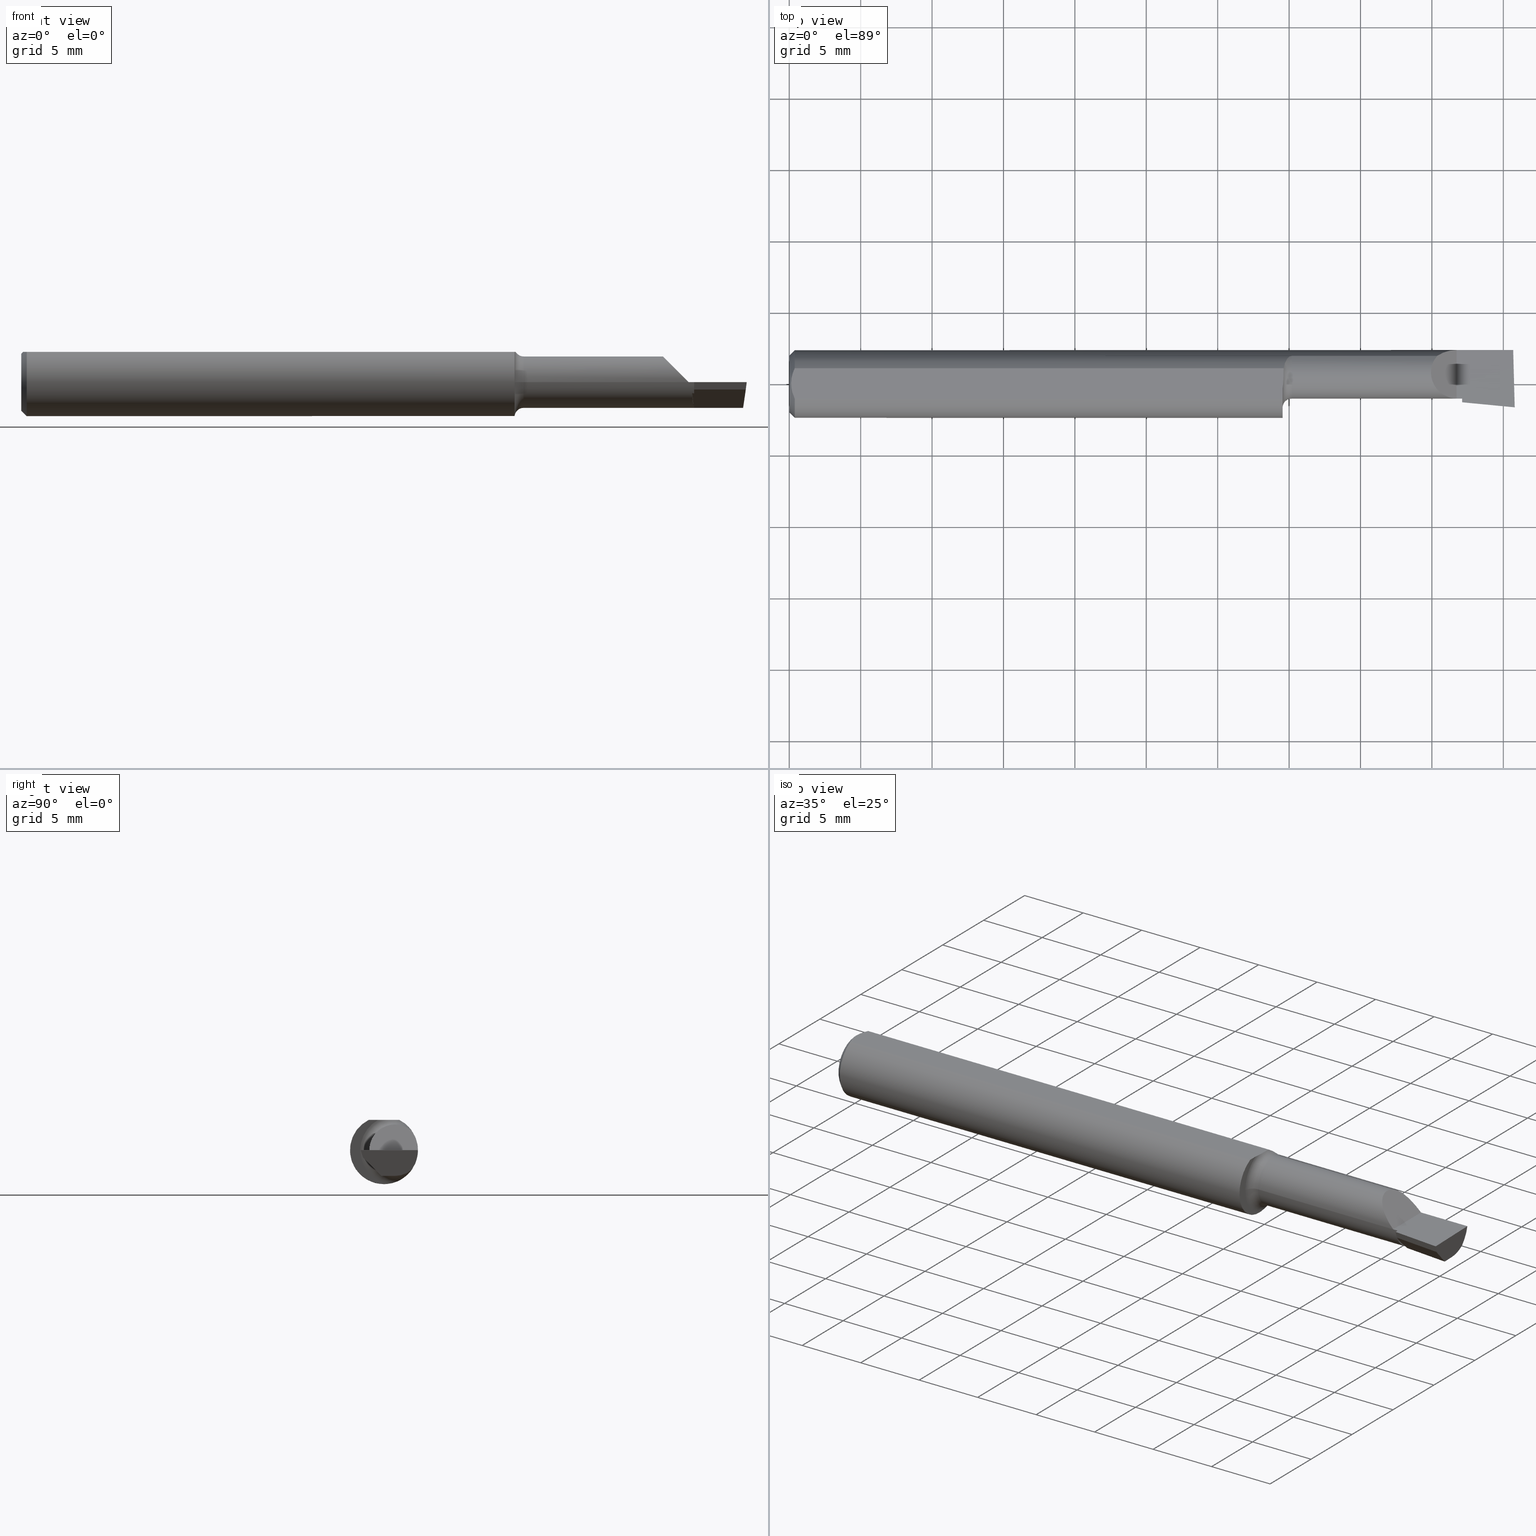
[diagram: canonical four-view strip — front | top / right | iso, engineering-drawing reading convention]
A machine part, canonical four-view strip (front | top / right | iso — engineering-drawing reading convention). The complete STEP part file that produces these views, byte-faithful:
ISO-10303-21;
HEADER;
FILE_DESCRIPTION (( 'STEP AP203' ),
    '1' );
FILE_NAME ('211932-LHB160600.STEP',
    '2024-08-23T16:45:56',
    ( '' ),
    ( '' ),
    'SwSTEP 2.0',
    'SolidWorks 2024',
    '' );
FILE_SCHEMA (( 'CONFIG_CONTROL_DESIGN' ));
ENDSEC;

DATA;
#1 = APPROVAL_PERSON_ORGANIZATION ( #90, #256, #36 ) ;
#2 = EDGE_CURVE ( 'NONE', #125, #699, #570, .T. ) ;
#3 = DIRECTION ( 'NONE',  ( 0.000000000000000000, -1.000000000000000000, 0.000000000000000000 ) ) ;
#4 = AXIS2_PLACEMENT_3D ( 'NONE', #457, #72, #345 ) ;
#5 = CARTESIAN_POINT ( 'NONE',  ( 1.854999999999999982, 0.03049999999999998199, -0.07089999999999999081 ) ) ;
#6 = CLOSED_SHELL ( 'NONE', ( #509, #52, #464, #275, #108, #30, #301, #81, #316, #502, #290, #415, #376, #367, #671, #556, #660, #523, #279 ) ) ;
#7 = VERTEX_POINT ( 'NONE', #564 ) ;
#8 = DIRECTION ( 'NONE',  ( 1.000000000000000000, 0.000000000000000000, 0.000000000000000000 ) ) ;
#9 = LINE ( 'NONE', #176, #677 ) ;
#10 = CARTESIAN_POINT ( 'NONE',  ( 0.000000000000000000, 0.000000000000000000, 0.000000000000000000 ) ) ;
#11 = ORIENTED_EDGE ( 'NONE', *, *, #512, .F. ) ;
#12 = DIRECTION ( 'NONE',  ( 0.9953961983671787417, -0.09584575252022420333, -0.000000000000000000 ) ) ;
#13 = CONICAL_SURFACE ( 'NONE', #348, 0.09360000000000001652, 0.7853981633974601584 ) ;
#14 = DIRECTION ( 'NONE',  ( -1.000000000000000000, -0.000000000000000000, -0.000000000000000000 ) ) ;
#15 = ORIENTED_EDGE ( 'NONE', *, *, #114, .F. ) ;
#16 = CARTESIAN_POINT ( 'NONE',  ( 1.377244873747904386, 0.07364233512257384318, -0.05779374943917914287 ) ) ;
#17 = CARTESIAN_POINT ( 'NONE',  ( 1.384999999999999565, 0.07646557377049154058, 0.05398125626501764501 ) ) ;
#18 = FACE_OUTER_BOUND ( 'NONE', #581, .T. ) ;
#19 = CARTESIAN_POINT ( 'NONE',  ( 1.840000000000000080, -0.2500000000000000555, 1.959434878635766031E-17 ) ) ;
#20 = EDGE_CURVE ( 'NONE', #433, #214, #289, .T. ) ;
#21 = CARTESIAN_POINT ( 'NONE',  ( 1.961456798068603513, -0.06540928926280098477, -0.3257614991881986888 ) ) ;
#22 = DIRECTION ( 'NONE',  ( 1.000000000000000000, 0.000000000000000000, 0.000000000000000000 ) ) ;
#23 = EDGE_CURVE ( 'NONE', #365, #7, #168, .T. ) ;
#24 = CARTESIAN_POINT ( 'NONE',  ( 1.362801882726447644, 0.04209513036031878319, 0.08360000000000000764 ) ) ;
#25 = ORIENTED_EDGE ( 'NONE', *, *, #302, .F. ) ;
#26 = TOROIDAL_SURFACE ( 'NONE', #637, 0.09590000000000006852, 0.02499999999999993547 ) ;
#27 = ORIENTED_EDGE ( 'NONE', *, *, #529, .T. ) ;
#28 = PRODUCT_DEFINITION ( 'UNKNOWN', '', #190, #194 ) ;
#29 = ORIENTED_EDGE ( 'NONE', *, *, #206, .T. ) ;
#30 = ADVANCED_FACE ( 'NONE', ( #18 ), #574, .T. ) ;
#31 = CC_DESIGN_APPROVAL ( #610, ( #42 ) ) ;
#32 = VECTOR ( 'NONE', #522, 39.37007874015748143 ) ;
#33 = VERTEX_POINT ( 'NONE', #460 ) ;
#34 = DIRECTION ( 'NONE',  ( 0.000000000000000000, 0.000000000000000000, 1.000000000000000000 ) ) ;
#35 = CARTESIAN_POINT ( 'NONE',  ( 0.000000000000000000, 0.000000000000000000, 0.000000000000000000 ) ) ;
#36 = APPROVAL_ROLE ( '' ) ;
#37 = B_SPLINE_CURVE_WITH_KNOTS ( 'NONE', 3,
 ( #48, #655, #594, #262, #437, #218, #644, #553 ),
 .UNSPECIFIED., .F., .F.,
 ( 4, 2, 2, 4 ),
 ( 0.009645755407239700943, 0.01039251846724311042, 0.01076589999724481342, 0.01113928152724651816 ),
 .UNSPECIFIED. ) ;
#38 = DIRECTION ( 'NONE',  ( -4.268512490100411279E-18, -1.000000000000000000, 0.000000000000000000 ) ) ;
#39 = EDGE_CURVE ( 'NONE', #656, #350, #267, .T. ) ;
#40 = CARTESIAN_POINT ( 'NONE',  ( 1.848806480742780645, -0.04350657842466744418, -0.02000000000000007327 ) ) ;
#41 = PERSON_AND_ORGANIZATION_ROLE ( 'creator' ) ;
#42 = SECURITY_CLASSIFICATION ( '', '', #322 ) ;
#43 = ORIENTED_EDGE ( 'NONE', *, *, #160, .T. ) ;
#44 = CARTESIAN_POINT ( 'NONE',  ( 0.009539353699420828961, -0.02875682547511369466, 0.08360000000000000764 ) ) ;
#45 = CIRCLE ( 'NONE', #670, 0.07090000000000006020 ) ;
#46 = DIRECTION ( 'NONE',  ( 0.000000000000000000, -1.000000000000000000, 0.000000000000000000 ) ) ;
#47 = CALENDAR_DATE ( 2024, 23, 8 ) ;
#48 = CARTESIAN_POINT ( 'NONE',  ( 1.359999999999999654, -0.01648776436477914636, 0.08360000000000000764 ) ) ;
#49 = DIRECTION ( 'NONE',  ( -4.268512490100411279E-18, -1.000000000000000000, 0.000000000000000000 ) ) ;
#50 = PERSON_AND_ORGANIZATION ( #89, #245 ) ;
#51 = PLANE ( 'NONE',  #555 ) ;
#52 = ADVANCED_FACE ( 'NONE', ( #458 ), #26, .F. ) ;
#53 = DIRECTION ( 'NONE',  ( 0.000000000000000000, -1.000000000000000000, 0.000000000000000000 ) ) ;
#54 = PERSON_AND_ORGANIZATION_ROLE ( 'creator' ) ;
#55 = CARTESIAN_POINT ( 'NONE',  ( 2.000000000000000000, 0.1436000000000000332, 0.08359999999999999376 ) ) ;
#56 = ORIENTED_EDGE ( 'NONE', *, *, #534, .F. ) ;
#57 = DIRECTION ( 'NONE',  ( 0.000000000000000000, -1.189000693621284344E-16, -1.000000000000000000 ) ) ;
#58 = ORIENTED_EDGE ( 'NONE', *, *, #71, .F. ) ;
#59 = CARTESIAN_POINT ( 'NONE',  ( 1.853287423599283779, -0.03344297587611165523, -0.03063069110996662070 ) ) ;
#60 = FACE_OUTER_BOUND ( 'NONE', #189, .T. ) ;
#61 = ORIENTED_EDGE ( 'NONE', *, *, #114, .T. ) ;
#62 = CARTESIAN_POINT ( 'NONE',  ( 1.368064680686317480, 0.06127374973417710341, -0.07108395546218300443 ) ) ;
#63 = DIRECTION ( 'NONE',  ( 0.1175789623991727179, 0.000000000000000000, 0.9930635365378863710 ) ) ;
#64 = EDGE_LOOP ( 'NONE', ( #576, #274, #11, #340 ) ) ;
#65 = CARTESIAN_POINT ( 'NONE',  ( 1.378436874164508108, 0.07452398798010552439, -0.05664421274495243241 ) ) ;
#66 = DIRECTION ( 'NONE',  ( -0.9927123040216839778, -0.02659410830638199788, 0.1175373763844853731 ) ) ;
#67 = VERTEX_POINT ( 'NONE', #192 ) ;
#68 = EDGE_CURVE ( 'NONE', #70, #238, #577, .T. ) ;
#69 = LINE ( 'NONE', #288, #480 ) ;
#70 = VERTEX_POINT ( 'NONE', #417 ) ;
#71 = EDGE_CURVE ( 'NONE', #284, #184, #272, .T. ) ;
#72 = DIRECTION ( 'NONE',  ( -1.000000000000000000, -0.000000000000000000, -0.000000000000000000 ) ) ;
#73 = ORIENTED_EDGE ( 'NONE', *, *, #74, .F. ) ;
#74 = EDGE_CURVE ( 'NONE', #674, #106, #45, .T. ) ;
#75 = VECTOR ( 'NONE', #349, 39.37007874015748143 ) ;
#76 = CARTESIAN_POINT ( 'NONE',  ( 0.01499999999999999598, 0.000000000000000000, 0.000000000000000000 ) ) ;
#77 = CIRCLE ( 'NONE', #468, 0.09590000000000006852 ) ;
#78 = VERTEX_POINT ( 'NONE', #558 ) ;
#79 = VECTOR ( 'NONE', #210, 39.37007874015748143 ) ;
#80 = CIRCLE ( 'NONE', #575, 0.07090000000000006020 ) ;
#81 = ADVANCED_FACE ( 'NONE', ( #60 ), #503, .F. ) ;
#82 = ORIENTED_EDGE ( 'NONE', *, *, #68, .F. ) ;
#83 = CARTESIAN_POINT ( 'NONE',  ( 1.384999999999999565, 0.03049999999999999586, 0.000000000000000000 ) ) ;
#84 = ORIENTED_EDGE ( 'NONE', *, *, #614, .T. ) ;
#85 = CC_DESIGN_PERSON_AND_ORGANIZATION_ASSIGNMENT ( #384, #378, ( #589 ) ) ;
#86 = LINE ( 'NONE', #320, #110 ) ;
#87 = DIRECTION ( 'NONE',  ( -1.000000000000000000, 4.268512490100411279E-18, -0.000000000000000000 ) ) ;
#88 = CARTESIAN_POINT ( 'NONE',  ( 1.854999999999999982, -0.04410294649893821417, -0.02000000000000007674 ) ) ;
#89 = PERSON ( 'UNSPECIFIED', 'UNSPECIFIED', 'UNSPECIFIED', ('UNSPECIFIED'), ('UNSPECIFIED'), ('UNSPECIFIED') ) ;
#90 = PERSON_AND_ORGANIZATION ( #89, #245 ) ;
#91 = EDGE_LOOP ( 'NONE', ( #84, #241, #462, #668 ) ) ;
#92 = CARTESIAN_POINT ( 'NONE',  ( 1.359999999999999654, 0.1436000000000000332, 0.08359999999999999376 ) ) ;
#93 = CARTESIAN_POINT ( 'NONE',  ( 1.852910919016435898, -0.0008803571618433328038, -0.06357737950242325908 ) ) ;
#94 = ORIENTED_EDGE ( 'NONE', *, *, #640, .F. ) ;
#95 = DIRECTION ( 'NONE',  ( -1.000000000000000000, 4.268512490100411279E-18, -0.000000000000000000 ) ) ;
#96 = CARTESIAN_POINT ( 'NONE',  ( 0.01499999999999999944, -0.04209513035969835587, 0.08360000000000000764 ) ) ;
#97 =( NAMED_UNIT ( * ) SI_UNIT ( $, .STERADIAN. ) SOLID_ANGLE_UNIT ( ) );
#98 = ORIENTED_EDGE ( 'NONE', *, *, #526, .T. ) ;
#99 = PLANE ( 'NONE',  #669 ) ;
#100 = FACE_OUTER_BOUND ( 'NONE', #422, .T. ) ;
#101 = APPROVAL_STATUS ( 'not_yet_approved' ) ;
#102 = CARTESIAN_POINT ( 'NONE',  ( 1.989834910356262698, 0.07646557377049181814, -0.05398125626501736746 ) ) ;
#103 = ORIENTED_EDGE ( 'NONE', *, *, #490, .F. ) ;
#104 = CARTESIAN_POINT ( 'NONE',  ( 1.360329054248858638, 0.02276897781908240534, -0.09108484809305547603 ) ) ;
#105 = CARTESIAN_POINT ( 'NONE',  ( 1.382734503266368487, 0.07646557377049152671, 0.05398125626501777685 ) ) ;
#106 = VERTEX_POINT ( 'NONE', #489 ) ;
#107 = LOCAL_TIME ( 9, 45, 56.00000000000000000, #427 ) ;
#108 = ADVANCED_FACE ( 'NONE', ( #386 ), #51, .F. ) ;
#109 = FACE_OUTER_BOUND ( 'NONE', #524, .T. ) ;
#110 = VECTOR ( 'NONE', #543, 39.37007874015748143 ) ;
#111 = AXIS2_PLACEMENT_3D ( 'NONE', #55, #57, #213 ) ;
#112 = AXIS2_PLACEMENT_3D ( 'NONE', #419, #14, #285 ) ;
#113 = ORIENTED_EDGE ( 'NONE', *, *, #647, .T. ) ;
#114 = EDGE_CURVE ( 'NONE', #70, #433, #338, .T. ) ;
#115 = PLANE ( 'NONE',  #519 ) ;
#116 = LINE ( 'NONE', #527, #170 ) ;
#117 =( BOUNDED_CURVE ( )  B_SPLINE_CURVE ( 3, ( #400, #341, #59, #333 ),
 .UNSPECIFIED., .F., .T. ) 
 B_SPLINE_CURVE_WITH_KNOTS ( ( 4, 4 ),
 ( 2.799043702077947504, 2.814498078600361275 ),
 .UNSPECIFIED. ) 
 CURVE ( )  GEOMETRIC_REPRESENTATION_ITEM ( )  RATIONAL_B_SPLINE_CURVE ( ( 1.000000000000000000, 0.9999800969528922501, 0.9999800969528922501, 1.000000000000000000 ) ) 
 REPRESENTATION_ITEM ( '' )  );
#118 = VERTEX_POINT ( 'NONE', #266 ) ;
#119 = CARTESIAN_POINT ( 'NONE',  ( 1.854999999999999982, -0.03328348887146324181, -0.03095927239752132784 ) ) ;
#120 = DIRECTION ( 'NONE',  ( 0.000000000000000000, -1.000000000000000000, 0.000000000000000000 ) ) ;
#121 = CARTESIAN_POINT ( 'NONE',  ( 1.996344650720118130, -0.007462253738168443326, -0.07089999999999997693 ) ) ;
#122 = CARTESIAN_POINT ( 'NONE',  ( -3.026375355481192394E-19, -0.04040000000000002617, 0.000000000000000000 ) ) ;
#123 = AXIS2_PLACEMENT_3D ( 'NONE', #215, #530, #34 ) ;
#124 = EDGE_CURVE ( 'NONE', #699, #606, #392, .T. ) ;
#125 = VERTEX_POINT ( 'NONE', #169 ) ;
#126 = CARTESIAN_POINT ( 'NONE',  ( 1.384999999999999565, 0.03049999999999999586, 0.000000000000000000 ) ) ;
#127 = VERTEX_POINT ( 'NONE', #102 ) ;
#128 = CARTESIAN_POINT ( 'NONE',  ( 1.849745517456717003, -0.03375430927761013944, -0.02996988053458379472 ) ) ;
#129 = ORIENTED_EDGE ( 'NONE', *, *, #177, .F. ) ;
#130 = ORIENTED_EDGE ( 'NONE', *, *, #173, .T. ) ;
#131 = PRODUCT_RELATED_PRODUCT_CATEGORY ( 'detail', '', ( #589 ) ) ;
#132 = AXIS2_PLACEMENT_3D ( 'NONE', #198, #479, #646 ) ;
#133 = ORIENTED_EDGE ( 'NONE', *, *, #140, .T. ) ;
#134 = AXIS2_PLACEMENT_3D ( 'NONE', #513, #336, #501 ) ;
#135 = ORIENTED_EDGE ( 'NONE', *, *, #631, .F. ) ;
#136 = CARTESIAN_POINT ( 'NONE',  ( 1.995767284141251041, 0.09359999999999989162, -6.589983774477494832E-17 ) ) ;
#137 = EDGE_CURVE ( 'NONE', #444, #606, #611, .T. ) ;
#138 = CARTESIAN_POINT ( 'NONE',  ( 1.359999999999999654, -0.06540000000000006919, 0.000000000000000000 ) ) ;
#139 = CARTESIAN_POINT ( 'NONE',  ( 1.854309966276355803, -0.001144082984849138481, -0.06344669943541490775 ) ) ;
#140 = EDGE_CURVE ( 'NONE', #444, #125, #319, .T. ) ;
#141 = VERTEX_POINT ( 'NONE', #157 ) ;
#142 = VECTOR ( 'NONE', #695, 39.37007874015748143 ) ;
#143 = FACE_OUTER_BOUND ( 'NONE', #225, .T. ) ;
#144 =( BOUNDED_CURVE ( )  B_SPLINE_CURVE ( 3, ( #623, #567, #411, #128 ),
 .UNSPECIFIED., .F., .F. ) 
 B_SPLINE_CURVE_WITH_KNOTS ( ( 4, 4 ),
 ( 5.170885314545602185, 5.846755792364222160 ),
 .UNSPECIFIED. ) 
 CURVE ( )  GEOMETRIC_REPRESENTATION_ITEM ( )  RATIONAL_B_SPLINE_CURVE ( ( 1.000000000000000000, 0.9622941510786500174, 0.9622941510786500174, 1.000000000000000000 ) ) 
 REPRESENTATION_ITEM ( '' )  );
#145 = CARTESIAN_POINT ( 'NONE',  ( 1.853613603698385459, -0.001012321790730346706, -0.06351224474506751705 ) ) ;
#146 = COORDINATED_UNIVERSAL_TIME_OFFSET ( 8, 0, .BEHIND. ) ;
#147 = CARTESIAN_POINT ( 'NONE',  ( 1.619999999999999662, 0.07646557377049181814, -0.05398125626501736746 ) ) ;
#148 = ORIENTED_EDGE ( 'NONE', *, *, #20, .T. ) ;
#149 = CARTESIAN_POINT ( 'NONE',  ( 1.359999999999999654, -0.06540000000000006919, 0.000000000000000000 ) ) ;
#150 = DIRECTION ( 'NONE',  ( 1.000000000000000000, 0.000000000000000000, 0.000000000000000000 ) ) ;
#151 = COORDINATED_UNIVERSAL_TIME_OFFSET ( 8, 0, .BEHIND. ) ;
#152 = CARTESIAN_POINT ( 'NONE',  ( 1.854999999999999982, -0.05043808801135695602, 1.120484528651357999E-17 ) ) ;
#153 = EDGE_LOOP ( 'NONE', ( #370, #673, #25, #409, #180, #268 ) ) ;
#154 = CARTESIAN_POINT ( 'NONE',  ( 1.840000000000000080, -0.04040000000000010250, 1.959434878635766031E-17 ) ) ;
#155 = AXIS2_PLACEMENT_3D ( 'NONE', #208, #684, #200 ) ;
#156 = CARTESIAN_POINT ( 'NONE',  ( 1.840000000000000080, -0.04040000000000010250, 1.959434878635766031E-17 ) ) ;
#157 = CARTESIAN_POINT ( 'NONE',  ( 1.359999999999999654, 0.008104918032786718671, -0.09324843325054749110 ) ) ;
#158 = ORIENTED_EDGE ( 'NONE', *, *, #71, .T. ) ;
#159 = LINE ( 'NONE', #334, #520 ) ;
#160 = EDGE_CURVE ( 'NONE', #7, #284, #37, .T. ) ;
#161 = VERTEX_POINT ( 'NONE', #152 ) ;
#162 = CARTESIAN_POINT ( 'NONE',  ( 1.989834910356262698, 0.07646557377049181814, -0.05398125626501736746 ) ) ;
#163 =( CONVERSION_BASED_UNIT ( 'INCH', #651 ) LENGTH_UNIT ( ) NAMED_UNIT ( #423 ) );
#164 = DIRECTION ( 'NONE',  ( -1.000000000000000000, -0.000000000000000000, -0.000000000000000000 ) ) ;
#165 = EDGE_CURVE ( 'NONE', #118, #343, #496, .T. ) ;
#166 = ORIENTED_EDGE ( 'NONE', *, *, #269, .F. ) ;
#167 = CARTESIAN_POINT ( 'NONE',  ( 1.988875288393480378, 0.06350290078668610616, -0.06501910055627770080 ) ) ;
#168 = CIRCLE ( 'NONE', #469, 0.09590000000000006852 ) ;
#169 = CARTESIAN_POINT ( 'NONE',  ( 1.990063896864007864, -0.006857485927400554758, -0.07089999999999996305 ) ) ;
#170 = VECTOR ( 'NONE', #233, 39.37007874015748143 ) ;
#171 = ORIENTED_EDGE ( 'NONE', *, *, #385, .T. ) ;
#172 = MANIFOLD_SOLID_BREP ( 'Extrude7', #6 ) ;
#173 = EDGE_CURVE ( 'NONE', #78, #682, #159, .T. ) ;
#174 = FACE_OUTER_BOUND ( 'NONE', #511, .T. ) ;
#175 = ORIENTED_EDGE ( 'NONE', *, *, #678, .T. ) ;
#176 = CARTESIAN_POINT ( 'NONE',  ( 1.854999999999999982, -0.06216482923734045762, -0.001704712032923528641 ) ) ;
#177 = EDGE_CURVE ( 'NONE', #238, #682, #688, .T. ) ;
#178 = EDGE_CURVE ( 'NONE', #277, #234, #144, .T. ) ;
#179 = DIRECTION ( 'NONE',  ( -5.493159289247768307E-16, 0.000000000000000000, -1.000000000000000000 ) ) ;
#180 = ORIENTED_EDGE ( 'NONE', *, *, #526, .F. ) ;
#181 = APPROVAL_PERSON_ORGANIZATION ( #217, #622, #493 ) ;
#182 = VECTOR ( 'NONE', #237, 39.37007874015748854 ) ;
#183 = PLANE ( 'NONE',  #485 ) ;
#184 = VERTEX_POINT ( 'NONE', #17 ) ;
#185 = DIRECTION ( 'NONE',  ( -1.000000000000000000, 0.000000000000000000, 5.493159289247768307E-16 ) ) ;
#186 = CARTESIAN_POINT ( 'NONE',  ( 1.989834910356262698, 0.07646557377049181814, -0.05398125626501736746 ) ) ;
#187 = ORIENTED_EDGE ( 'NONE', *, *, #331, .T. ) ;
#188 = ORIENTED_EDGE ( 'NONE', *, *, #2, .F. ) ;
#189 = EDGE_LOOP ( 'NONE', ( #454, #43, #663, #94, #332, #380 ) ) ;
#190 = PRODUCT_DEFINITION_FORMATION_WITH_SPECIFIED_SOURCE ( 'ANY', '', #589, .NOT_KNOWN. ) ;
#191 = CIRCLE ( 'NONE', #635, 0.09360000000000001652 ) ;
#192 = CARTESIAN_POINT ( 'NONE',  ( 0.01499999999999999598, 0.04209513035969837669, 0.08360000000000000764 ) ) ;
#193 = ORIENTED_EDGE ( 'NONE', *, *, #269, .T. ) ;
#194 = DESIGN_CONTEXT ( 'detailed design', #617, 'design' ) ;
#195 = FACE_OUTER_BOUND ( 'NONE', #616, .T. ) ;
#196 = ORIENTED_EDGE ( 'NONE', *, *, #472, .F. ) ;
#197 = PLANE ( 'NONE',  #258 ) ;
#198 = CARTESIAN_POINT ( 'NONE',  ( 1.384999999999999565, -0.06540000000000006919, 0.000000000000000000 ) ) ;
#199 = LOCAL_TIME ( 9, 45, 56.00000000000000000, #151 ) ;
#200 = DIRECTION ( 'NONE',  ( -0.09584575252022403680, -0.9953961983671787417, 0.000000000000000000 ) ) ;
#201 = ORIENTED_EDGE ( 'NONE', *, *, #630, .F. ) ;
#202 = TOROIDAL_SURFACE ( 'NONE', #608, 0.09590000000000006852, 0.02499999999999993547 ) ;
#203 = CARTESIAN_POINT ( 'NONE',  ( 1.854999999999999982, -0.06043808801135709674, 0.000000000000000000 ) ) ;
#204 = CARTESIAN_POINT ( 'NONE',  ( 1.854999999999999982, 0.03049999999999998893, 0.000000000000000000 ) ) ;
#205 = MECHANICAL_CONTEXT ( 'NONE', #249, 'mechanical' ) ;
#206 = EDGE_CURVE ( 'NONE', #184, #656, #116, .T. ) ;
#207 = DIRECTION ( 'NONE',  ( 4.268512490100411279E-18, 1.000000000000000000, -1.189000693621284344E-16 ) ) ;
#208 = CARTESIAN_POINT ( 'NONE',  ( 1.864818331718871791, 0.1227828519500340221, -0.1900000000000011124 ) ) ;
#209 = APPROVAL_DATE_TIME ( #309, #622 ) ;
#210 = DIRECTION ( 'NONE',  ( -1.000000000000000000, -0.000000000000000000, -0.000000000000000000 ) ) ;
#211 = CARTESIAN_POINT ( 'NONE',  ( 0.000000000000000000, 1.054420894065869177E-17, 0.07859999999999965625 ) ) ;
#212 = DIRECTION ( 'NONE',  ( 0.09140971883575740864, 0.9493262270931228652, 0.3007057995042734522 ) ) ;
#213 = DIRECTION ( 'NONE',  ( 0.000000000000000000, 1.000000000000000000, -1.189000693621284344E-16 ) ) ;
#214 = VERTEX_POINT ( 'NONE', #342 ) ;
#215 = CARTESIAN_POINT ( 'NONE',  ( 0.01499999999999999598, 0.000000000000000000, 0.000000000000000000 ) ) ;
#216 = VECTOR ( 'NONE', #560, 39.37007874015748143 ) ;
#217 = PERSON_AND_ORGANIZATION ( #89, #245 ) ;
#218 = CARTESIAN_POINT ( 'NONE',  ( 1.363304846087465050, 0.03228758059735881147, 0.08360000000000000764 ) ) ;
#219 = ORIENTED_EDGE ( 'NONE', *, *, #385, .F. ) ;
#220 = CARTESIAN_POINT ( 'NONE',  ( 1.359999999999999654, 0.008104918032786718671, -0.09324843325054749110 ) ) ;
#221 = ORIENTED_EDGE ( 'NONE', *, *, #521, .T. ) ;
#222 = DIRECTION ( 'NONE',  ( -2.998855530929885675E-18, -0.7025528302622681132, 0.7116315905652844664 ) ) ;
#223 =( LENGTH_UNIT ( ) NAMED_UNIT ( * ) SI_UNIT ( $, .METRE. ) );
#224 = CARTESIAN_POINT ( 'NONE',  ( 1.384999999999999565, 0.07646557377049154058, 0.05398125626501764501 ) ) ;
#225 = EDGE_LOOP ( 'NONE', ( #135, #148, #449, #504, #82 ) ) ;
#226 = APPROVAL_PERSON_ORGANIZATION ( #652, #610, #539 ) ;
#227 = CC_DESIGN_PERSON_AND_ORGANIZATION_ASSIGNMENT ( #585, #251, ( #42 ) ) ;
#228 = CARTESIAN_POINT ( 'NONE',  ( 1.384999999999999565, 0.07646557377049148507, -0.05398125626501769359 ) ) ;
#229 = VECTOR ( 'NONE', #425, 39.37007874015748143 ) ;
#230 = ORIENTED_EDGE ( 'NONE', *, *, #383, .F. ) ;
#231 = CARTESIAN_POINT ( 'NONE',  ( 1.362866246175462592, 0.04341922408232194025, -0.08323100132652262728 ) ) ;
#232 = FACE_OUTER_BOUND ( 'NONE', #64, .T. ) ;
#233 = DIRECTION ( 'NONE',  ( 1.000000000000000000, -4.268512490100411279E-18, 0.000000000000000000 ) ) ;
#234 = VERTEX_POINT ( 'NONE', #360 ) ;
#235 = VECTOR ( 'NONE', #662, 39.37007874015748854 ) ;
#236 = CC_DESIGN_PERSON_AND_ORGANIZATION_ASSIGNMENT ( #50, #697, ( #190 ) ) ;
#237 = DIRECTION ( 'NONE',  ( 0.1020886612874978977, -0.7038430390621320809, 0.7029814233678641777 ) ) ;
#238 = VERTEX_POINT ( 'NONE', #401 ) ;
#239 = AXIS2_PLACEMENT_3D ( 'NONE', #76, #22, #296 ) ;
#240 = EDGE_CURVE ( 'NONE', #470, #161, #579, .T. ) ;
#241 = ORIENTED_EDGE ( 'NONE', *, *, #23, .T. ) ;
#242 = ORIENTED_EDGE ( 'NONE', *, *, #39, .T. ) ;
#243 =( BOUNDED_CURVE ( )  B_SPLINE_CURVE ( 3, ( #162, #167, #657, #661 ),
 .UNSPECIFIED., .F., .T. ) 
 B_SPLINE_CURVE_WITH_KNOTS ( ( 4, 4 ),
 ( 5.800329550944178791, 6.505699533271599222 ),
 .UNSPECIFIED. ) 
 CURVE ( )  GEOMETRIC_REPRESENTATION_ITEM ( )  RATIONAL_B_SPLINE_CURVE ( ( 1.000000000000000000, 0.9589657668801497836, 0.9589657668801497836, 1.000000000000000000 ) ) 
 REPRESENTATION_ITEM ( '' )  );
#244 = DIRECTION ( 'NONE',  ( 0.7071067811865391350, 0.000000000000000000, -0.7071067811865558994 ) ) ;
#245 = ORGANIZATION ( 'UNSPECIFIED', 'UNSPECIFIED', '' ) ;
#246 = DIRECTION ( 'NONE',  ( -1.000000000000000000, 4.268512490100411279E-18, -0.000000000000000000 ) ) ;
#247 = CARTESIAN_POINT ( 'NONE',  ( 1.384999999999999565, 0.07646557377049148507, -0.05398125626501769359 ) ) ;
#248 = ORIENTED_EDGE ( 'NONE', *, *, #573, .T. ) ;
#249 = APPLICATION_CONTEXT ( 'configuration controlled 3d designs of mechanical parts and assemblies' ) ;
#250 = CARTESIAN_POINT ( 'NONE',  ( 0.005000000000000225618, 0.007308422719211825694, 0.08360000000000000764 ) ) ;
#251 = PERSON_AND_ORGANIZATION_ROLE ( 'classification_officer' ) ;
#252 = ORIENTED_EDGE ( 'NONE', *, *, #429, .T. ) ;
#253 = CARTESIAN_POINT ( 'NONE',  ( 0.005975039161239529238, -0.01453776427033147065, 0.08359999999999997988 ) ) ;
#254 = CARTESIAN_POINT ( 'NONE',  ( 1.359999999999999654, 0.03049999999999999239, 0.000000000000000000 ) ) ;
#255 = DATE_TIME_ROLE ( 'classification_date' ) ;
#256 = APPROVAL ( #101, 'UNSPECIFIED' ) ;
#257 = AXIS2_PLACEMENT_3D ( 'NONE', #35, #531, #591 ) ;
#258 = AXIS2_PLACEMENT_3D ( 'NONE', #471, #681, #304 ) ;
#259 = FACE_OUTER_BOUND ( 'NONE', #389, .T. ) ;
#260 = PLANE ( 'NONE',  #155 ) ;
#261 = CALENDAR_DATE ( 2024, 23, 8 ) ;
#262 = CARTESIAN_POINT ( 'NONE',  ( 1.362745430549511250, 0.01759363370294220880, 0.08360000000000000764 ) ) ;
#263 = DIRECTION ( 'NONE',  ( 4.268512490100411279E-18, 1.000000000000000000, 0.000000000000000000 ) ) ;
#264 = CARTESIAN_POINT ( 'NONE',  ( 1.786018743734981928, 0.07646557377049163773, 0.05398125626501756175 ) ) ;
#265 = DATE_AND_TIME ( #261, #406 ) ;
#266 = CARTESIAN_POINT ( 'NONE',  ( 2.000000000000000444, -0.06440000000000012381, 1.707404996040164512E-17 ) ) ;
#267 =( BOUNDED_CURVE ( )  B_SPLINE_CURVE ( 3, ( #666, #517, #300, #675 ),
 .UNSPECIFIED., .F., .T. ) 
 B_SPLINE_CURVE_WITH_KNOTS ( ( 4, 4 ),
 ( 0.9560848706099355221, 1.570796326794896558 ),
 .UNSPECIFIED. ) 
 CURVE ( )  GEOMETRIC_REPRESENTATION_ITEM ( )  RATIONAL_B_SPLINE_CURVE ( ( 1.000000000000000000, 0.9687579316594151502, 0.9687579316594151502, 1.000000000000000000 ) ) 
 REPRESENTATION_ITEM ( '' )  );
#268 = ORIENTED_EDGE ( 'NONE', *, *, #541, .F. ) ;
#269 = EDGE_CURVE ( 'NONE', #106, #184, #80, .T. ) ;
#270 = CARTESIAN_POINT ( 'NONE',  ( 1.359999999999999654, 0.000000000000000000, 0.000000000000000000 ) ) ;
#271 = APPROVAL_STATUS ( 'not_yet_approved' ) ;
#272 = B_SPLINE_CURVE_WITH_KNOTS ( 'NONE', 3,
 ( #465, #276, #339, #545, #280, #693, #549, #397, #105, #224 ),
 .UNSPECIFIED., .F., .F.,
 ( 4, 2, 2, 2, 4 ),
 ( 4.457974472520025043E-07, 0.0006718060699091065509, 0.001007486206140034007, 0.001175326274255502831, 0.001343166342370971655 ),
 .UNSPECIFIED. ) ;
#273 = CARTESIAN_POINT ( 'NONE',  ( 1.989070957871529766, 0.03020721816494860434, -0.07089999999999999081 ) ) ;
#274 = ORIENTED_EDGE ( 'NONE', *, *, #614, .F. ) ;
#275 = ADVANCED_FACE ( 'NONE', ( #510 ), #197, .F. ) ;
#276 = CARTESIAN_POINT ( 'NONE',  ( 1.364271705382763766, 0.04994636227297227782, 0.07964666709476365958 ) ) ;
#277 = VERTEX_POINT ( 'NONE', #667 ) ;
#278 = CARTESIAN_POINT ( 'NONE',  ( 1.366019021117885091, 0.05561872204144369808, -0.07562530238090374446 ) ) ;
#279 = ADVANCED_FACE ( 'NONE', ( #561 ), #183, .F. ) ;
#280 = CARTESIAN_POINT ( 'NONE',  ( 1.372663484135165035, 0.06910045470751273455, 0.06324836830213501071 ) ) ;
#281 = VERTEX_POINT ( 'NONE', #506 ) ;
#282 = CARTESIAN_POINT ( 'NONE',  ( 1.848806480742780645, -0.04350657842466744418, -0.02000000000000007327 ) ) ;
#283 = DIRECTION ( 'NONE',  ( -1.288962874626037232E-18, -0.3019700370129913547, 0.9533174165755980978 ) ) ;
#284 = VERTEX_POINT ( 'NONE', #24 ) ;
#285 = DIRECTION ( 'NONE',  ( 0.000000000000000000, 0.000000000000000000, 1.000000000000000000 ) ) ;
#286 = VERTEX_POINT ( 'NONE', #408 ) ;
#287 = CARTESIAN_POINT ( 'NONE',  ( 1.372379481194432538, 0.06851133057105110447, -0.06386523205973035355 ) ) ;
#288 = CARTESIAN_POINT ( 'NONE',  ( 1.848806480742780645, -0.04350657842466744418, -0.02000000000000007327 ) ) ;
#289 = LINE ( 'NONE', #515, #32 ) ;
#290 = ADVANCED_FACE ( 'NONE', ( #232 ), #202, .F. ) ;
#291 = LINE ( 'NONE', #516, #182 ) ;
#292 = DIRECTION ( 'NONE',  ( 0.000000000000000000, -1.000000000000000000, 0.000000000000000000 ) ) ;
#293 = EDGE_CURVE ( 'NONE', #33, #118, #352, .T. ) ;
#294 = AXIS2_PLACEMENT_3D ( 'NONE', #40, #212, #426 ) ;
#295 = VECTOR ( 'NONE', #653, 39.37007874015748143 ) ;
#296 = DIRECTION ( 'NONE',  ( 0.000000000000000000, 0.000000000000000000, -1.000000000000000000 ) ) ;
#297 = VECTOR ( 'NONE', #446, 39.37007874015748143 ) ;
#298 = EDGE_LOOP ( 'NONE', ( #500, #221, #201 ) ) ;
#299 = ORIENTED_EDGE ( 'NONE', *, *, #472, .T. ) ;
#300 = CARTESIAN_POINT ( 'NONE',  ( 1.820512722067858302, 0.09360000000000001652, 0.01948727793214147935 ) ) ;
#301 = ADVANCED_FACE ( 'NONE', ( #174 ), #461, .T. ) ;
#302 = EDGE_CURVE ( 'NONE', #125, #33, #291, .T. ) ;
#303 = EDGE_LOOP ( 'NONE', ( #680, #484, #685, #166 ) ) ;
#304 = DIRECTION ( 'NONE',  ( 4.268512490100411279E-18, 1.000000000000000000, 0.000000000000000000 ) ) ;
#305 = VECTOR ( 'NONE', #150, 39.37007874015748143 ) ;
#306 = B_SPLINE_CURVE_WITH_KNOTS ( 'NONE', 3,
 ( #228, #664, #344, #65, #16, #498, #287, #62, #278, #231, #403, #104, #566, #220 ),
 .UNSPECIFIED., .F., .F.,
 ( 4, 2, 2, 2, 2, 2, 4 ),
 ( 1.959158530917775964E-07, 0.0001424059935986614258, 0.0002846160713442310469, 0.0005690362268353703432, 0.001137876537817649044, 0.001706716848799927312, 0.002275557159782205796 ),
 .UNSPECIFIED. ) ;
#307 = DIRECTION ( 'NONE',  ( -1.000000000000000000, 4.268512490100411279E-18, 0.000000000000000000 ) ) ;
#308 = DIRECTION ( 'NONE',  ( 1.000000000000000000, -4.268512490100411279E-18, 0.000000000000000000 ) ) ;
#309 = DATE_AND_TIME ( #47, #107 ) ;
#310 = DIRECTION ( 'NONE',  ( -0.000000000000000000, 1.000000000000000000, -0.000000000000000000 ) ) ;
#311 = LINE ( 'NONE', #597, #305 ) ;
#312 = APPLICATION_PROTOCOL_DEFINITION ( 'international standard', 'config_control_design', 1994, #249 ) ;
#313 =( BOUNDED_CURVE ( )  B_SPLINE_CURVE ( 3, ( #638, #139, #145, #93 ),
 .UNSPECIFIED., .F., .F. ) 
 B_SPLINE_CURVE_WITH_KNOTS ( ( 4, 4 ),
 ( 3.468687228579224069, 3.474914179896567479 ),
 .UNSPECIFIED. ) 
 CURVE ( )  GEOMETRIC_REPRESENTATION_ITEM ( )  RATIONAL_B_SPLINE_CURVE ( ( 1.000000000000000000, 0.9999967687590510801, 0.9999967687590510801, 1.000000000000000000 ) ) 
 REPRESENTATION_ITEM ( '' )  );
#314 = ORIENTED_EDGE ( 'NONE', *, *, #293, .T. ) ;
#315 = LINE ( 'NONE', #147, #364 ) ;
#316 = ADVANCED_FACE ( 'NONE', ( #672 ), #563, .F. ) ;
#317 = FACE_OUTER_BOUND ( 'NONE', #546, .T. ) ;
#318 = APPROVAL_DATE_TIME ( #363, #256 ) ;
#319 = LINE ( 'NONE', #273, #356 ) ;
#320 = CARTESIAN_POINT ( 'NONE',  ( 1.854999999999999982, -0.2500000000000000555, 1.135460985248602998E-17 ) ) ;
#321 = CARTESIAN_POINT ( 'NONE',  ( -3.026375355475532086E-19, -0.04040000000000001229, 1.030335658007946637E-15 ) ) ;
#322 = SECURITY_CLASSIFICATION_LEVEL ( 'unclassified' ) ;
#323 = CARTESIAN_POINT ( 'NONE',  ( 2.004968535903863369, -0.2498668961980060610, -7.102549575703346400E-17 ) ) ;
#324 = EDGE_CURVE ( 'NONE', #451, #106, #404, .T. ) ;
#325 = ORIENTED_EDGE ( 'NONE', *, *, #240, .F. ) ;
#326 = LINE ( 'NONE', #634, #229 ) ;
#327 = PRODUCT_DEFINITION_SHAPE ( 'NONE', 'NONE',  #28 ) ;
#328 = CARTESIAN_POINT ( 'NONE',  ( 1.854999999999999982, 0.006147688147485310534, -0.07089999999999997693 ) ) ;
#329 = CALENDAR_DATE ( 2024, 23, 8 ) ;
#330 = CARTESIAN_POINT ( 'NONE',  ( 2.000000000000000000, 0.03049999999999998199, -0.07089999999999999081 ) ) ;
#331 = EDGE_CURVE ( 'NONE', #277, #234, #69, .T. ) ;
#332 = ORIENTED_EDGE ( 'NONE', *, *, #399, .F. ) ;
#333 = CARTESIAN_POINT ( 'NONE',  ( 1.854999999999999982, -0.03328348887146324181, -0.03095927239752132784 ) ) ;
#334 = CARTESIAN_POINT ( 'NONE',  ( 0.000000000000000000, -0.04209513035969835587, 0.08360000000000000764 ) ) ;
#335 = EDGE_LOOP ( 'NONE', ( #188, #578, #56, #353, #103, #463, #554, #447 ) ) ;
#336 = DIRECTION ( 'NONE',  ( 0.06836202603457078308, 0.7099667855717585185, 0.7009092642998473455 ) ) ;
#337 = AXIS2_PLACEMENT_3D ( 'NONE', #505, #390, #600 ) ;
#338 = CIRCLE ( 'NONE', #607, 0.07859999999999965625 ) ;
#339 = CARTESIAN_POINT ( 'NONE',  ( 1.366280435687898143, 0.05700135229382525398, 0.07471156184488440821 ) ) ;
#340 = ORIENTED_EDGE ( 'NONE', *, *, #74, .T. ) ;
#341 = CARTESIAN_POINT ( 'NONE',  ( 1.851535894557424067, -0.03359991913514303458, -0.03030088725821917725 ) ) ;
#342 = CARTESIAN_POINT ( 'NONE',  ( 0.005000000000000236026, 1.025183009042025117E-17, 0.08360000000000000764 ) ) ;
#343 = VERTEX_POINT ( 'NONE', #374 ) ;
#344 = CARTESIAN_POINT ( 'NONE',  ( 1.381350203328813420, 0.07594758393973957689, -0.05472071011665107648 ) ) ;
#345 = DIRECTION ( 'NONE',  ( 0.000000000000000000, 0.000000000000000000, 1.000000000000000000 ) ) ;
#346 = ORIENTED_EDGE ( 'NONE', *, *, #20, .F. ) ;
#347 = LINE ( 'NONE', #282, #605 ) ;
#348 = AXIS2_PLACEMENT_3D ( 'NONE', #368, #687, #381 ) ;
#349 = DIRECTION ( 'NONE',  ( -1.000000000000000000, 4.268512490100411279E-18, -0.000000000000000000 ) ) ;
#350 = VERTEX_POINT ( 'NONE', #632 ) ;
#351 =( BOUNDED_CURVE ( )  B_SPLINE_CURVE ( 3, ( #136, #361, #580, #186 ),
 .UNSPECIFIED., .F., .T. ) 
 B_SPLINE_CURVE_WITH_KNOTS ( ( 4, 4 ),
 ( 4.934903206476702664, 5.549614662661660702 ),
 .UNSPECIFIED. ) 
 CURVE ( )  GEOMETRIC_REPRESENTATION_ITEM ( )  RATIONAL_B_SPLINE_CURVE ( ( 1.000000000000000000, 0.9687579316594154832, 0.9687579316594154832, 1.000000000000000000 ) ) 
 REPRESENTATION_ITEM ( '' )  );
#352 = LINE ( 'NONE', #569, #235 ) ;
#353 = ORIENTED_EDGE ( 'NONE', *, *, #429, .F. ) ;
#354 = EDGE_CURVE ( 'NONE', #451, #350, #590, .T. ) ;
#355 = ORIENTED_EDGE ( 'NONE', *, *, #137, .T. ) ;
#356 = VECTOR ( 'NONE', #698, 39.37007874015748143 ) ;
#357 = ORIENTED_EDGE ( 'NONE', *, *, #512, .T. ) ;
#358 = DIRECTION ( 'NONE',  ( -4.268512490100411279E-18, -1.000000000000000000, 0.000000000000000000 ) ) ;
#359 = ORIENTED_EDGE ( 'NONE', *, *, #625, .F. ) ;
#360 = CARTESIAN_POINT ( 'NONE',  ( 1.849745517456717003, -0.03375430927761013944, -0.02996988053458379472 ) ) ;
#361 = CARTESIAN_POINT ( 'NONE',  ( 1.993459985730886119, 0.09360000000000003040, -0.01948727793214140996 ) ) ;
#362 = DIRECTION ( 'NONE',  ( -1.000000000000000000, 4.268512490100411279E-18, -0.000000000000000000 ) ) ;
#363 = DATE_AND_TIME ( #329, #424 ) ;
#364 = VECTOR ( 'NONE', #95, 39.37007874015748143 ) ;
#365 = VERTEX_POINT ( 'NONE', #138 ) ;
#366 = VECTOR ( 'NONE', #412, 39.37007874015748143 ) ;
#367 = ADVANCED_FACE ( 'NONE', ( #430 ), #486, .T. ) ;
#368 = CARTESIAN_POINT ( 'NONE',  ( 0.01499999999999999598, 0.000000000000000000, 0.000000000000000000 ) ) ;
#369 = DIRECTION ( 'NONE',  ( 0.000000000000000000, 0.000000000000000000, 1.000000000000000000 ) ) ;
#370 = ORIENTED_EDGE ( 'NONE', *, *, #165, .F. ) ;
#371 = EDGE_CURVE ( 'NONE', #78, #7, #582, .T. ) ;
#372 = CARTESIAN_POINT ( 'NONE',  ( 0.01206089165507025218, -0.03555991978469313225, 0.08360000000000000764 ) ) ;
#373 = DATE_AND_TIME ( #432, #602 ) ;
#374 = CARTESIAN_POINT ( 'NONE',  ( 1.995767284141251041, 0.09359999999999989162, -6.589983774477494832E-17 ) ) ;
#375 = CC_DESIGN_APPROVAL ( #256, ( #28 ) ) ;
#376 = ADVANCED_FACE ( 'NONE', ( #259 ), #99, .F. ) ;
#377 = DIRECTION ( 'NONE',  ( -0.000000000000000000, 2.216913501526167164E-16, 1.000000000000000000 ) ) ;
#378 = PERSON_AND_ORGANIZATION_ROLE ( 'design_owner' ) ;
#379 = DIRECTION ( 'NONE',  ( 0.000000000000000000, 0.000000000000000000, 1.000000000000000000 ) ) ;
#380 = ORIENTED_EDGE ( 'NONE', *, *, #173, .F. ) ;
#381 = DIRECTION ( 'NONE',  ( 0.000000000000000000, 0.000000000000000000, -1.000000000000000000 ) ) ;
#382 = B_SPLINE_CURVE_WITH_KNOTS ( 'NONE', 3,
 ( #588, #250, #473, #431, #476, #691 ),
 .UNSPECIFIED., .F., .F.,
 ( 4, 2, 4 ),
 ( 0.006881281100865560205, 0.007427683811376459971, 0.007974086521887359738 ),
 .UNSPECIFIED. ) ;
#383 = EDGE_CURVE ( 'NONE', #127, #674, #315, .T. ) ;
#384 = PERSON_AND_ORGANIZATION ( #89, #245 ) ;
#385 = EDGE_CURVE ( 'NONE', #281, #161, #86, .T. ) ;
#386 = FACE_OUTER_BOUND ( 'NONE', #659, .T. ) ;
#387 = ORIENTED_EDGE ( 'NONE', *, *, #439, .T. ) ;
#388 = DIRECTION ( 'NONE',  ( -1.000000000000000000, -0.000000000000000000, -0.000000000000000000 ) ) ;
#389 = EDGE_LOOP ( 'NONE', ( #196, #252, #398, #219 ) ) ;
#390 = DIRECTION ( 'NONE',  ( -1.000000000000000000, 4.268512490100411279E-18, -0.000000000000000000 ) ) ;
#391 = ADVANCED_BREP_SHAPE_REPRESENTATION ( '211932-LHB160600', ( #172, #540 ), #565 ) ;
#392 = LINE ( 'NONE', #5, #295 ) ;
#393 = ORIENTED_EDGE ( 'NONE', *, *, #324, .T. ) ;
#394 = AXIS2_PLACEMENT_3D ( 'NONE', #665, #179, #185 ) ;
#395 = LINE ( 'NONE', #609, #216 ) ;
#396 = VECTOR ( 'NONE', #283, 39.37007874015748854 ) ;
#397 = CARTESIAN_POINT ( 'NONE',  ( 1.380716106491990169, 0.07573797007891044930, 0.05501896193680017727 ) ) ;
#398 = ORIENTED_EDGE ( 'NONE', *, *, #240, .T. ) ;
#399 = EDGE_CURVE ( 'NONE', #682, #214, #410, .T. ) ;
#400 = CARTESIAN_POINT ( 'NONE',  ( 1.849745517456717003, -0.03375430927761013944, -0.02996988053458379472 ) ) ;
#401 = CARTESIAN_POINT ( 'NONE',  ( 0.01499999999999999598, 0.000000000000000000, -0.09360000000000001652 ) ) ;
#402 = ORIENTED_EDGE ( 'NONE', *, *, #137, .F. ) ;
#403 = CARTESIAN_POINT ( 'NONE',  ( 1.361756004422870481, 0.03669390866074578872, -0.08642009587044961749 ) ) ;
#404 = LINE ( 'NONE', #122, #75 ) ;
#405 = ORIENTED_EDGE ( 'NONE', *, *, #354, .T. ) ;
#406 = LOCAL_TIME ( 9, 45, 56.00000000000000000, #488 ) ;
#407 = VECTOR ( 'NONE', #308, 39.37007874015748143 ) ;
#408 = CARTESIAN_POINT ( 'NONE',  ( 1.854999999999999982, -0.001275639466943232197, -0.06338074420884341753 ) ) ;
#409 = ORIENTED_EDGE ( 'NONE', *, *, #140, .F. ) ;
#410 = B_SPLINE_CURVE_WITH_KNOTS ( 'NONE', 3,
 ( #491, #372, #44, #253, #538, #533 ),
 .UNSPECIFIED., .F., .F.,
 ( 4, 2, 4 ),
 ( 0.005785415439423114564, 0.006333348270144337384, 0.006881281100865560205 ),
 .UNSPECIFIED. ) ;
#411 = CARTESIAN_POINT ( 'NONE',  ( 1.850408341871571771, -0.02687061453493573560, -0.04472826605627652774 ) ) ;
#412 = DIRECTION ( 'NONE',  ( -0.9953961983671787417, 0.09584575252022423109, -1.762833507653596014E-17 ) ) ;
#413 = ORIENTED_EDGE ( 'NONE', *, *, #534, .T. ) ;
#414 = ORIENTED_EDGE ( 'NONE', *, *, #354, .F. ) ;
#415 = ADVANCED_FACE ( 'NONE', ( #474 ), #683, .F. ) ;
#416 = AXIS2_PLACEMENT_3D ( 'NONE', #596, #587, #53 ) ;
#417 = CARTESIAN_POINT ( 'NONE',  ( 0.000000000000000000, 0.000000000000000000, -0.07859999999999965625 ) ) ;
#418 = ORIENTED_EDGE ( 'NONE', *, *, #2, .T. ) ;
#419 = CARTESIAN_POINT ( 'NONE',  ( 0.01499999999999999598, 0.000000000000000000, 0.000000000000000000 ) ) ;
#420 = CARTESIAN_POINT ( 'NONE',  ( 1.854999999999999982, 0.03049999999999998199, -0.07089999999999999081 ) ) ;
#421 = CC_DESIGN_PERSON_AND_ORGANIZATION_ASSIGNMENT ( #593, #54, ( #28 ) ) ;
#422 = EDGE_LOOP ( 'NONE', ( #402, #133, #418, #568 ) ) ;
#423 = DIMENSIONAL_EXPONENTS ( 1.000000000000000000, 0.000000000000000000, 0.000000000000000000, 0.000000000000000000, 0.000000000000000000, 0.000000000000000000, 0.000000000000000000 ) ;
#424 = LOCAL_TIME ( 9, 45, 56.00000000000000000, #548 ) ;
#425 = DIRECTION ( 'NONE',  ( 0.9953961983671787417, -0.09584575252022403680, -5.454764794874166072E-16 ) ) ;
#426 = DIRECTION ( 'NONE',  ( 0.000000000000000000, -0.3019700370129913547, 0.9533174165755980978 ) ) ;
#427 = COORDINATED_UNIVERSAL_TIME_OFFSET ( 8, 0, .BEHIND. ) ;
#428 = CIRCLE ( 'NONE', #123, 0.09360000000000001652 ) ;
#429 = EDGE_CURVE ( 'NONE', #507, #470, #435, .T. ) ;
#430 = FACE_OUTER_BOUND ( 'NONE', #303, .T. ) ;
#431 = CARTESIAN_POINT ( 'NONE',  ( 0.009492654797564338900, 0.02859466010166627700, 0.08360000000000000764 ) ) ;
#432 = CALENDAR_DATE ( 2024, 23, 8 ) ;
#433 = VERTEX_POINT ( 'NONE', #211 ) ;
#434 = EDGE_CURVE ( 'NONE', #365, #106, #452, .T. ) ;
#435 = LINE ( 'NONE', #690, #142 ) ;
#436 = PLANE ( 'NONE',  #658 ) ;
#437 = CARTESIAN_POINT ( 'NONE',  ( 1.363100172960822976, 0.02248939037389795226, 0.08360000000000004927 ) ) ;
#438 = CARTESIAN_POINT ( 'NONE',  ( 0.000000000000000000, 0.03049999999999999586, 0.000000000000000000 ) ) ;
#439 = EDGE_CURVE ( 'NONE', #161, #118, #326, .T. ) ;
#440 = CARTESIAN_POINT ( 'NONE',  ( 1.769987205483423365, -0.04040000000000002617, 0.07001279451657577146 ) ) ;
#441 = DATE_TIME_ROLE ( 'creation_date' ) ;
#442 = DIRECTION ( 'NONE',  ( 0.000000000000000000, 0.000000000000000000, -1.000000000000000000 ) ) ;
#443 = VECTOR ( 'NONE', #207, 39.37007874015748143 ) ;
#444 = VERTEX_POINT ( 'NONE', #547 ) ;
#445 = DATE_AND_TIME ( #532, #199 ) ;
#446 = DIRECTION ( 'NONE',  ( -0.02677973311239223789, 0.9996413586354002678, 1.491794346410804536E-17 ) ) ;
#447 = ORIENTED_EDGE ( 'NONE', *, *, #521, .F. ) ;
#448 = FACE_OUTER_BOUND ( 'NONE', #335, .T. ) ;
#449 = ORIENTED_EDGE ( 'NONE', *, *, #640, .T. ) ;
#450 = DIRECTION ( 'NONE',  ( -1.000000000000000000, 4.268512490100411279E-18, -0.000000000000000000 ) ) ;
#451 = VERTEX_POINT ( 'NONE', #154 ) ;
#452 = CIRCLE ( 'NONE', #132, 0.02499999999999986955 ) ;
#453 = DIRECTION ( 'NONE',  ( -1.000000000000000000, 4.268512490100411279E-18, -0.000000000000000000 ) ) ;
#454 = ORIENTED_EDGE ( 'NONE', *, *, #371, .T. ) ;
#455 = CYLINDRICAL_SURFACE ( 'NONE', #337, 0.07090000000000001856 ) ;
#456 = CC_DESIGN_PERSON_AND_ORGANIZATION_ASSIGNMENT ( #536, #41, ( #190 ) ) ;
#457 = CARTESIAN_POINT ( 'NONE',  ( 0.000000000000000000, 0.000000000000000000, 0.000000000000000000 ) ) ;
#458 = FACE_OUTER_BOUND ( 'NONE', #619, .T. ) ;
#459 = CARTESIAN_POINT ( 'NONE',  ( 1.384999999999999565, 0.03049999999999999239, 0.000000000000000000 ) ) ;
#460 = CARTESIAN_POINT ( 'NONE',  ( 1.997455717880613157, -0.05781987198395957539, -0.02000000000000006981 ) ) ;
#461 = CYLINDRICAL_SURFACE ( 'NONE', #4, 0.09360000000000001652 ) ;
#462 = ORIENTED_EDGE ( 'NONE', *, *, #371, .F. ) ;
#463 = ORIENTED_EDGE ( 'NONE', *, *, #331, .F. ) ;
#464 = ADVANCED_FACE ( 'NONE', ( #143 ), #13, .T. ) ;
#465 = CARTESIAN_POINT ( 'NONE',  ( 1.362801882726447644, 0.04209513036031878319, 0.08360000000000000764 ) ) ;
#466 = EDGE_LOOP ( 'NONE', ( #621, #175, #405 ) ) ;
#467 = VECTOR ( 'NONE', #310, 39.37007874015748143 ) ;
#468 = AXIS2_PLACEMENT_3D ( 'NONE', #254, #87, #46 ) ;
#469 = AXIS2_PLACEMENT_3D ( 'NONE', #624, #571, #292 ) ;
#470 = VERTEX_POINT ( 'NONE', #88 ) ;
#471 = CARTESIAN_POINT ( 'NONE',  ( 1.854999999999999982, -0.06043808801135709674, 0.000000000000000000 ) ) ;
#472 = EDGE_CURVE ( 'NONE', #507, #281, #627, .T. ) ;
#473 = CARTESIAN_POINT ( 'NONE',  ( 0.005981829149300843529, 0.01454044632356567453, 0.08360000000000003539 ) ) ;
#474 = FACE_OUTER_BOUND ( 'NONE', #91, .T. ) ;
#475 = EDGE_CURVE ( 'NONE', #141, #78, #191, .T. ) ;
#476 = CARTESIAN_POINT ( 'NONE',  ( 0.01203648650249651043, 0.03550565407121124978, 0.08360000000000000764 ) ) ;
#477 = SHAPE_DEFINITION_REPRESENTATION ( #327, #391 ) ;
#478 = ORIENTED_EDGE ( 'NONE', *, *, #483, .F. ) ;
#479 = DIRECTION ( 'NONE',  ( 0.000000000000000000, -0.000000000000000000, -1.000000000000000000 ) ) ;
#480 = VECTOR ( 'NONE', #514, 39.37007874015748854 ) ;
#481 = APPROVAL_STATUS ( 'not_yet_approved' ) ;
#482 = AXIS2_PLACEMENT_3D ( 'NONE', #204, #487, #636 ) ;
#483 = EDGE_CURVE ( 'NONE', #67, #238, #428, .T. ) ;
#484 = ORIENTED_EDGE ( 'NONE', *, *, #678, .F. ) ;
#485 = AXIS2_PLACEMENT_3D ( 'NONE', #21, #66, #63 ) ;
#486 = CYLINDRICAL_SURFACE ( 'NONE', #583, 0.07090000000000001856 ) ;
#487 = DIRECTION ( 'NONE',  ( -1.000000000000000000, 4.268512490100411279E-18, -0.000000000000000000 ) ) ;
#488 = COORDINATED_UNIVERSAL_TIME_OFFSET ( 8, 0, .BEHIND. ) ;
#489 = CARTESIAN_POINT ( 'NONE',  ( 1.384999999999999565, -0.04040000000000006780, 0.000000000000000000 ) ) ;
#490 = EDGE_CURVE ( 'NONE', #234, #507, #117, .T. ) ;
#491 = CARTESIAN_POINT ( 'NONE',  ( 0.01499999999999999944, -0.04209513035969835587, 0.08360000000000000764 ) ) ;
#492 = CARTESIAN_POINT ( 'NONE',  ( 1.786018743734981928, 0.07646557377049163773, 0.05398125626501756175 ) ) ;
#493 = APPROVAL_ROLE ( '' ) ;
#494 = ORIENTED_EDGE ( 'NONE', *, *, #573, .F. ) ;
#495 = DIRECTION ( 'NONE',  ( -1.000000000000000000, 4.268512490100411279E-18, -0.000000000000000000 ) ) ;
#496 = LINE ( 'NONE', #323, #297 ) ;
#497 = ORIENTED_EDGE ( 'NONE', *, *, #160, .F. ) ;
#498 = CARTESIAN_POINT ( 'NONE',  ( 1.374015914171514030, 0.07074360550884849219, -0.06136535069389376096 ) ) ;
#499 = CC_DESIGN_DATE_AND_TIME_ASSIGNMENT ( #445, #255, ( #42 ) ) ;
#500 = ORIENTED_EDGE ( 'NONE', *, *, #124, .F. ) ;
#501 = DIRECTION ( 'NONE',  ( 0.000000000000000000, -0.7025528302622681132, 0.7116315905652844664 ) ) ;
#502 = ADVANCED_FACE ( 'NONE', ( #613 ), #115, .F. ) ;
#503 = PLANE ( 'NONE',  #111 ) ;
#504 = ORIENTED_EDGE ( 'NONE', *, *, #483, .T. ) ;
#505 = CARTESIAN_POINT ( 'NONE',  ( 0.000000000000000000, 0.03049999999999999586, 0.000000000000000000 ) ) ;
#506 = CARTESIAN_POINT ( 'NONE',  ( 1.854999999999999982, -0.04039999999999999841, 0.000000000000000000 ) ) ;
#507 = VERTEX_POINT ( 'NONE', #119 ) ;
#508 = AXIS2_PLACEMENT_3D ( 'NONE', #149, #307, #49 ) ;
#509 = ADVANCED_FACE ( 'NONE', ( #109 ), #455, .T. ) ;
#510 = FACE_OUTER_BOUND ( 'NONE', #298, .T. ) ;
#511 = EDGE_LOOP ( 'NONE', ( #248, #650, #599, #357, #626, #130, #129, #478, #27, #158, #29, #242 ) ) ;
#512 = EDGE_CURVE ( 'NONE', #674, #141, #306, .T. ) ;
#513 = CARTESIAN_POINT ( 'NONE',  ( 1.848806480742780645, -0.04350657842466744418, -0.02000000000000007327 ) ) ;
#514 = DIRECTION ( 'NONE',  ( -0.06717917588521589434, -0.6976824170844040385, 0.7132504491541850067 ) ) ;
#515 = CARTESIAN_POINT ( 'NONE',  ( 0.01499999999999999598, 1.146269404001922775E-17, 0.09360000000000001652 ) ) ;
#516 = CARTESIAN_POINT ( 'NONE',  ( 1.994878008415317039, -0.04004803678706321535, -0.03775007964733242960 ) ) ;
#517 = CARTESIAN_POINT ( 'NONE',  ( 1.801938678439108488, 0.08770433171880955003, 0.03806132156089105795 ) ) ;
#518 = CC_DESIGN_SECURITY_CLASSIFICATION ( #42, ( #190 ) ) ;
#519 = AXIS2_PLACEMENT_3D ( 'NONE', #19, #551, #603 ) ;
#520 = VECTOR ( 'NONE', #164, 39.37007874015748143 ) ;
#521 = EDGE_CURVE ( 'NONE', #699, #286, #9, .T. ) ;
#522 = DIRECTION ( 'NONE',  ( 0.7071067811865391350, 8.659560562355035164E-17, 0.7071067811865558994 ) ) ;
#523 = ADVANCED_FACE ( 'NONE', ( #448 ), #557, .F. ) ;
#524 = EDGE_LOOP ( 'NONE', ( #359, #393, #73, #230, #98, #355, #562, #113, #586, #601, #299 ) ) ;
#525 = CARTESIAN_POINT ( 'NONE',  ( 0.01499999999999999598, 0.000000000000000000, -0.09360000000000001652 ) ) ;
#526 = EDGE_CURVE ( 'NONE', #127, #444, #243, .T. ) ;
#527 = CARTESIAN_POINT ( 'NONE',  ( 1.619999999999999662, 0.07646557377049181814, 0.05398125626501736746 ) ) ;
#528 = ORIENTED_EDGE ( 'NONE', *, *, #625, .T. ) ;
#529 = EDGE_CURVE ( 'NONE', #67, #284, #395, .T. ) ;
#530 = DIRECTION ( 'NONE',  ( -1.000000000000000000, -0.000000000000000000, -0.000000000000000000 ) ) ;
#531 = DIRECTION ( 'NONE',  ( -1.000000000000000000, -0.000000000000000000, -0.000000000000000000 ) ) ;
#532 = CALENDAR_DATE ( 2024, 23, 8 ) ;
#533 = CARTESIAN_POINT ( 'NONE',  ( 0.005000000000000236026, 1.025183009042025117E-17, 0.08360000000000000764 ) ) ;
#534 = EDGE_CURVE ( 'NONE', #470, #33, #347, .T. ) ;
#535 = PLANE ( 'NONE',  #294 ) ;
#536 = PERSON_AND_ORGANIZATION ( #89, #245 ) ;
#537 = ORIENTED_EDGE ( 'NONE', *, *, #23, .F. ) ;
#538 = CARTESIAN_POINT ( 'NONE',  ( 0.005000000000000227353, -0.007328888879231044290, 0.08360000000000000764 ) ) ;
#539 = APPROVAL_ROLE ( '' ) ;
#540 = AXIS2_PLACEMENT_3D ( 'NONE', #598, #369, #643 ) ;
#541 = EDGE_CURVE ( 'NONE', #343, #127, #351, .T. ) ;
#542 = CARTESIAN_POINT ( 'NONE',  ( 1.384999999999999565, 0.03049999999999999239, 0.000000000000000000 ) ) ;
#543 = DIRECTION ( 'NONE',  ( -4.268512490100411279E-18, -1.000000000000000000, 2.344761903626519813E-33 ) ) ;
#544 =( NAMED_UNIT ( * ) PLANE_ANGLE_UNIT ( ) SI_UNIT ( $, .RADIAN. ) );
#545 = CARTESIAN_POINT ( 'NONE',  ( 1.370886223621647027, 0.06626224018846474384, 0.06624030822967916232 ) ) ;
#546 = EDGE_LOOP ( 'NONE', ( #187, #612 ) ) ;
#547 = CARTESIAN_POINT ( 'NONE',  ( 1.989063114439147739, 0.03049999999999998199, -0.07089999999999999081 ) ) ;
#548 = COORDINATED_UNIVERSAL_TIME_OFFSET ( 8, 0, .BEHIND. ) ;
#549 = CARTESIAN_POINT ( 'NONE',  ( 1.377475890146723891, 0.07388913376859240767, 0.05747801488572876205 ) ) ;
#550 = ORIENTED_EDGE ( 'NONE', *, *, #631, .T. ) ;
#551 = DIRECTION ( 'NONE',  ( -0.7071067811865433539, 0.000000000000000000, -0.7071067811865516806 ) ) ;
#552 = CC_DESIGN_APPROVAL ( #622, ( #190 ) ) ;
#553 = CARTESIAN_POINT ( 'NONE',  ( 1.362801882726447644, 0.04209513036031878319, 0.08360000000000000764 ) ) ;
#554 = ORIENTED_EDGE ( 'NONE', *, *, #647, .F. ) ;
#555 = AXIS2_PLACEMENT_3D ( 'NONE', #10, #8, #442 ) ;
#556 = ADVANCED_FACE ( 'NONE', ( #195 ), #535, .F. ) ;
#557 = PLANE ( 'NONE',  #134 ) ;
#558 = CARTESIAN_POINT ( 'NONE',  ( 1.359999999999999654, -0.04209513035969843220, 0.08360000000000000764 ) ) ;
#559 = ORIENTED_EDGE ( 'NONE', *, *, #165, .T. ) ;
#560 = DIRECTION ( 'NONE',  ( 1.000000000000000000, 0.000000000000000000, 0.000000000000000000 ) ) ;
#561 = FACE_OUTER_BOUND ( 'NONE', #153, .T. ) ;
#562 = ORIENTED_EDGE ( 'NONE', *, *, #630, .T. ) ;
#563 = PLANE ( 'NONE',  #394 ) ;
#564 = CARTESIAN_POINT ( 'NONE',  ( 1.359999999999999654, -0.01648776436477914636, 0.08360000000000000764 ) ) ;
#565 =( GEOMETRIC_REPRESENTATION_CONTEXT ( 3 ) GLOBAL_UNCERTAINTY_ASSIGNED_CONTEXT ( ( #686 ) ) GLOBAL_UNIT_ASSIGNED_CONTEXT ( ( #163, #544, #97 ) ) REPRESENTATION_CONTEXT ( 'NONE', 'WORKASPACE' ) );
#566 = CARTESIAN_POINT ( 'NONE',  ( 1.359999999999993214, 0.01550498344099938801, -0.09260523827686180376 ) ) ;
#567 = CARTESIAN_POINT ( 'NONE',  ( 1.851504819338526175, -0.01548326065119242853, -0.05636971648324778233 ) ) ;
#568 = ORIENTED_EDGE ( 'NONE', *, *, #124, .T. ) ;
#569 = CARTESIAN_POINT ( 'NONE',  ( 1.994783492653271706, -0.05090885219192672895, -0.04100573051218979470 ) ) ;
#570 = LINE ( 'NONE', #121, #366 ) ;
#571 = DIRECTION ( 'NONE',  ( -1.000000000000000000, 4.268512490100411279E-18, -0.000000000000000000 ) ) ;
#572 = CIRCLE ( 'NONE', #257, 0.07859999999999965625 ) ;
#573 = EDGE_CURVE ( 'NONE', #350, #343, #311, .T. ) ;
#574 = CONICAL_SURFACE ( 'NONE', #239, 0.09360000000000001652, 0.7853981633974601584 ) ;
#575 = AXIS2_PLACEMENT_3D ( 'NONE', #459, #246, #120 ) ;
#576 = ORIENTED_EDGE ( 'NONE', *, *, #434, .F. ) ;
#577 = LINE ( 'NONE', #525, #679 ) ;
#578 = ORIENTED_EDGE ( 'NONE', *, *, #302, .T. ) ;
#579 = LINE ( 'NONE', #618, #396 ) ;
#580 = CARTESIAN_POINT ( 'NONE',  ( 1.991418755549738462, 0.08770433171880957779, -0.03806132156089089141 ) ) ;
#581 = EDGE_LOOP ( 'NONE', ( #346, #15, #645, #676, #654 ) ) ;
#582 = LINE ( 'NONE', #92, #443 ) ;
#583 = AXIS2_PLACEMENT_3D ( 'NONE', #438, #362, #38 ) ;
#584 = CIRCLE ( 'NONE', #482, 0.07089999999999999081 ) ;
#585 = PERSON_AND_ORGANIZATION ( #89, #245 ) ;
#586 = ORIENTED_EDGE ( 'NONE', *, *, #178, .T. ) ;
#587 = DIRECTION ( 'NONE',  ( -1.000000000000000000, 4.268512490100411279E-18, -0.000000000000000000 ) ) ;
#588 = CARTESIAN_POINT ( 'NONE',  ( 0.005000000000000236026, 1.025183009042025117E-17, 0.08360000000000000764 ) ) ;
#589 = PRODUCT ( '211932-LHB160600', '211932-LHB160600', '', ( #205 ) ) ;
#590 = LINE ( 'NONE', #641, #467 ) ;
#591 = DIRECTION ( 'NONE',  ( 0.000000000000000000, 0.000000000000000000, 1.000000000000000000 ) ) ;
#592 = DIRECTION ( 'NONE',  ( 1.000000000000000000, -4.268512490100411279E-18, 0.000000000000000000 ) ) ;
#593 = PERSON_AND_ORGANIZATION ( #89, #245 ) ;
#594 = CARTESIAN_POINT ( 'NONE',  ( 1.361342386208457711, 0.002910845047597404329, 0.08359999999999999376 ) ) ;
#595 = ORIENTED_EDGE ( 'NONE', *, *, #439, .F. ) ;
#596 = CARTESIAN_POINT ( 'NONE',  ( 1.854999999999999982, 0.03049999999999998893, 0.000000000000000000 ) ) ;
#597 = CARTESIAN_POINT ( 'NONE',  ( 5.659797890829564224E-31, 0.09359999999999998876, 1.030335658007946637E-15 ) ) ;
#598 = CARTESIAN_POINT ( 'NONE',  ( 0.000000000000000000, 0.000000000000000000, 0.000000000000000000 ) ) ;
#599 = ORIENTED_EDGE ( 'NONE', *, *, #383, .T. ) ;
#600 = DIRECTION ( 'NONE',  ( -4.268512490100411279E-18, -1.000000000000000000, 0.000000000000000000 ) ) ;
#601 = ORIENTED_EDGE ( 'NONE', *, *, #490, .T. ) ;
#602 = LOCAL_TIME ( 9, 45, 56.00000000000000000, #146 ) ;
#603 = DIRECTION ( 'NONE',  ( -0.7071067811865516806, 0.000000000000000000, 0.7071067811865433539 ) ) ;
#604 = DIRECTION ( 'NONE',  ( 0.000000000000000000, -1.000000000000000000, 0.000000000000000000 ) ) ;
#605 = VECTOR ( 'NONE', #12, 39.37007874015748854 ) ;
#606 = VERTEX_POINT ( 'NONE', #420 ) ;
#607 = AXIS2_PLACEMENT_3D ( 'NONE', #649, #388, #379 ) ;
#608 = AXIS2_PLACEMENT_3D ( 'NONE', #126, #453, #615 ) ;
#609 = CARTESIAN_POINT ( 'NONE',  ( 0.000000000000000000, 0.04209513035969837669, 0.08360000000000000764 ) ) ;
#610 = APPROVAL ( #481, 'UNSPECIFIED' ) ;
#611 = LINE ( 'NONE', #330, #79 ) ;
#612 = ORIENTED_EDGE ( 'NONE', *, *, #178, .F. ) ;
#613 = FACE_OUTER_BOUND ( 'NONE', #466, .T. ) ;
#614 = EDGE_CURVE ( 'NONE', #141, #365, #77, .T. ) ;
#615 = DIRECTION ( 'NONE',  ( -4.268512490100411279E-18, -1.000000000000000000, 0.000000000000000000 ) ) ;
#616 = EDGE_LOOP ( 'NONE', ( #413, #314, #595, #325 ) ) ;
#617 = APPLICATION_CONTEXT ( 'configuration controlled 3d designs of mechanical parts and assemblies' ) ;
#618 = CARTESIAN_POINT ( 'NONE',  ( 1.854999999999999982, -0.05134994704389323622, 0.002878732955684670455 ) ) ;
#619 = EDGE_LOOP ( 'NONE', ( #537, #639, #193, #58, #497 ) ) ;
#620 =( BOUNDED_CURVE ( )  B_SPLINE_CURVE ( 3, ( #492, #696, #440, #156 ),
 .UNSPECIFIED., .F., .F. ) 
 B_SPLINE_CURVE_WITH_KNOTS ( ( 4, 4 ),
 ( 5.577815324852169354, 7.853981633974482790 ),
 .UNSPECIFIED. ) 
 CURVE ( )  GEOMETRIC_REPRESENTATION_ITEM ( )  RATIONAL_B_SPLINE_CURVE ( ( 1.000000000000000000, 0.6128902971210741235, 0.6128902971210741235, 1.000000000000000000 ) ) 
 REPRESENTATION_ITEM ( '' )  );
#621 = ORIENTED_EDGE ( 'NONE', *, *, #39, .F. ) ;
#622 = APPROVAL ( #271, 'UNSPECIFIED' ) ;
#623 = CARTESIAN_POINT ( 'NONE',  ( 1.852910919016435898, -0.0008803571618433328038, -0.06357737950242325908 ) ) ;
#624 = CARTESIAN_POINT ( 'NONE',  ( 1.359999999999999654, 0.03049999999999999239, 0.000000000000000000 ) ) ;
#625 = EDGE_CURVE ( 'NONE', #451, #281, #633, .T. ) ;
#626 = ORIENTED_EDGE ( 'NONE', *, *, #475, .T. ) ;
#627 = CIRCLE ( 'NONE', #416, 0.07089999999999999081 ) ;
#628 = DIRECTION ( 'NONE',  ( -1.000000000000000000, 4.268512490100411279E-18, -0.000000000000000000 ) ) ;
#629 = EDGE_LOOP ( 'NONE', ( #387, #559, #494, #414, #528, #171 ) ) ;
#630 = EDGE_CURVE ( 'NONE', #606, #286, #584, .T. ) ;
#631 = EDGE_CURVE ( 'NONE', #433, #70, #572, .T. ) ;
#632 = CARTESIAN_POINT ( 'NONE',  ( 1.840000000000000080, 0.09359999999999982223, 1.959434878635766031E-17 ) ) ;
#633 = LINE ( 'NONE', #321, #407 ) ;
#634 = CARTESIAN_POINT ( 'NONE',  ( 2.017707074770943354, -0.06610499737605686488, -7.802297806794780678E-17 ) ) ;
#635 = AXIS2_PLACEMENT_3D ( 'NONE', #270, #495, #3 ) ;
#636 = DIRECTION ( 'NONE',  ( 0.000000000000000000, -1.000000000000000000, 0.000000000000000000 ) ) ;
#637 = AXIS2_PLACEMENT_3D ( 'NONE', #83, #628, #358 ) ;
#638 = CARTESIAN_POINT ( 'NONE',  ( 1.854999999999999982, -0.001275639466943232197, -0.06338074420884341753 ) ) ;
#639 = ORIENTED_EDGE ( 'NONE', *, *, #434, .T. ) ;
#640 = EDGE_CURVE ( 'NONE', #214, #67, #382, .T. ) ;
#641 = CARTESIAN_POINT ( 'NONE',  ( 1.840000000000000080, -0.2500000000000000555, 1.959434878635766031E-17 ) ) ;
#642 = CARTESIAN_POINT ( 'NONE',  ( 2.000000000000000000, 0.03049999999999998199, -0.07089999999999999081 ) ) ;
#643 = DIRECTION ( 'NONE',  ( 1.000000000000000000, 0.000000000000000000, 0.000000000000000000 ) ) ;
#644 = CARTESIAN_POINT ( 'NONE',  ( 1.363150981066458378, 0.03719006435409283329, 0.08360000000000003539 ) ) ;
#645 = ORIENTED_EDGE ( 'NONE', *, *, #68, .T. ) ;
#646 = DIRECTION ( 'NONE',  ( -1.000000000000000000, 0.000000000000000000, 0.000000000000000000 ) ) ;
#647 = EDGE_CURVE ( 'NONE', #286, #277, #313, .T. ) ;
#648 = DIRECTION ( 'NONE',  ( 0.000000000000000000, -1.000000000000000000, 2.216913501526167164E-16 ) ) ;
#649 = CARTESIAN_POINT ( 'NONE',  ( 0.000000000000000000, 0.000000000000000000, 0.000000000000000000 ) ) ;
#650 = ORIENTED_EDGE ( 'NONE', *, *, #541, .T. ) ;
#651 = LENGTH_MEASURE_WITH_UNIT ( LENGTH_MEASURE( 0.02539999999999999897 ), #223 );
#652 = PERSON_AND_ORGANIZATION ( #89, #245 ) ;
#653 = DIRECTION ( 'NONE',  ( -0.000000000000000000, 1.000000000000000000, -2.216913501526167164E-16 ) ) ;
#654 = ORIENTED_EDGE ( 'NONE', *, *, #399, .T. ) ;
#655 = CARTESIAN_POINT ( 'NONE',  ( 1.359999999999999210, -0.006771783251042027413, 0.08360000000000000764 ) ) ;
#656 = VERTEX_POINT ( 'NONE', #264 ) ;
#657 = CARTESIAN_POINT ( 'NONE',  ( 1.988607014681748053, 0.04752541915734218025, -0.07090000000000003244 ) ) ;
#658 = AXIS2_PLACEMENT_3D ( 'NONE', #642, #377, #648 ) ;
#659 = EDGE_LOOP ( 'NONE', ( #61, #550 ) ) ;
#660 = ADVANCED_FACE ( 'NONE', ( #317 ), #260, .F. ) ;
#661 = CARTESIAN_POINT ( 'NONE',  ( 1.989063114439147739, 0.03049999999999998199, -0.07089999999999999081 ) ) ;
#662 = DIRECTION ( 'NONE',  ( 0.1199690778467075308, -0.3102690083707251301, 0.9430485474275741575 ) ) ;
#663 = ORIENTED_EDGE ( 'NONE', *, *, #529, .F. ) ;
#664 = CARTESIAN_POINT ( 'NONE',  ( 1.383095068269281525, 0.07646557377049156834, -0.05398125626501770052 ) ) ;
#665 = CARTESIAN_POINT ( 'NONE',  ( 2.000000000000000000, -0.2500000000000000555, -6.829619984160658046E-17 ) ) ;
#666 = CARTESIAN_POINT ( 'NONE',  ( 1.786018743734981928, 0.07646557377049163773, 0.05398125626501756175 ) ) ;
#667 = CARTESIAN_POINT ( 'NONE',  ( 1.852910919016435898, -0.0008803571618433328038, -0.06357737950242325908 ) ) ;
#668 = ORIENTED_EDGE ( 'NONE', *, *, #475, .F. ) ;
#669 = AXIS2_PLACEMENT_3D ( 'NONE', #203, #592, #263 ) ;
#670 = AXIS2_PLACEMENT_3D ( 'NONE', #542, #450, #604 ) ;
#671 = ADVANCED_FACE ( 'NONE', ( #100 ), #436, .F. ) ;
#672 = FACE_OUTER_BOUND ( 'NONE', #629, .T. ) ;
#673 = ORIENTED_EDGE ( 'NONE', *, *, #293, .F. ) ;
#674 = VERTEX_POINT ( 'NONE', #247 ) ;
#675 = CARTESIAN_POINT ( 'NONE',  ( 1.840000000000000080, 0.09359999999999982223, 1.959434878635766031E-17 ) ) ;
#676 = ORIENTED_EDGE ( 'NONE', *, *, #177, .T. ) ;
#677 = VECTOR ( 'NONE', #222, 39.37007874015748143 ) ;
#678 = EDGE_CURVE ( 'NONE', #656, #451, #620, .T. ) ;
#679 = VECTOR ( 'NONE', #244, 39.37007874015748143 ) ;
#680 = ORIENTED_EDGE ( 'NONE', *, *, #324, .F. ) ;
#681 = DIRECTION ( 'NONE',  ( 1.000000000000000000, -4.268512490100411279E-18, 0.000000000000000000 ) ) ;
#682 = VERTEX_POINT ( 'NONE', #96 ) ;
#683 = PLANE ( 'NONE',  #508 ) ;
#684 = DIRECTION ( 'NONE',  ( -0.9953961983671788527, 0.09584575252022405067, -6.226273118743774044E-16 ) ) ;
#685 = ORIENTED_EDGE ( 'NONE', *, *, #206, .F. ) ;
#686 = UNCERTAINTY_MEASURE_WITH_UNIT (LENGTH_MEASURE( 1.000000000000000082E-05 ), #163, 'distance_accuracy_value', 'NONE');
#687 = DIRECTION ( 'NONE',  ( 1.000000000000000000, 0.000000000000000000, 0.000000000000000000 ) ) ;
#688 = CIRCLE ( 'NONE', #112, 0.09360000000000001652 ) ;
#689 = APPLICATION_PROTOCOL_DEFINITION ( 'international standard', 'config_control_design', 1994, #617 ) ;
#690 = CARTESIAN_POINT ( 'NONE',  ( 1.854999999999999982, -0.06216482923734045762, -0.001704712032923528641 ) ) ;
#691 = CARTESIAN_POINT ( 'NONE',  ( 0.01499999999999999598, 0.04209513035969837669, 0.08360000000000000764 ) ) ;
#692 = APPROVAL_DATE_TIME ( #265, #610 ) ;
#693 = CARTESIAN_POINT ( 'NONE',  ( 1.376159648777484090, 0.07275446879445240933, 0.05891786234966387564 ) ) ;
#694 = CC_DESIGN_DATE_AND_TIME_ASSIGNMENT ( #373, #441, ( #28 ) ) ;
#695 = DIRECTION ( 'NONE',  ( -2.998855530929885675E-18, -0.7025528302622681132, 0.7116315905652844664 ) ) ;
#696 = CARTESIAN_POINT ( 'NONE',  ( 1.740628359091399791, 0.02315981068686279523, 0.09937164090859912369 ) ) ;
#697 = PERSON_AND_ORGANIZATION_ROLE ( 'design_supplier' ) ;
#698 = DIRECTION ( 'NONE',  ( 0.02677973311239226564, -0.9996413586354002678, 2.218353553984413861E-16 ) ) ;
#699 = VERTEX_POINT ( 'NONE', #328 ) ;
ENDSEC;
END-ISO-10303-21;
